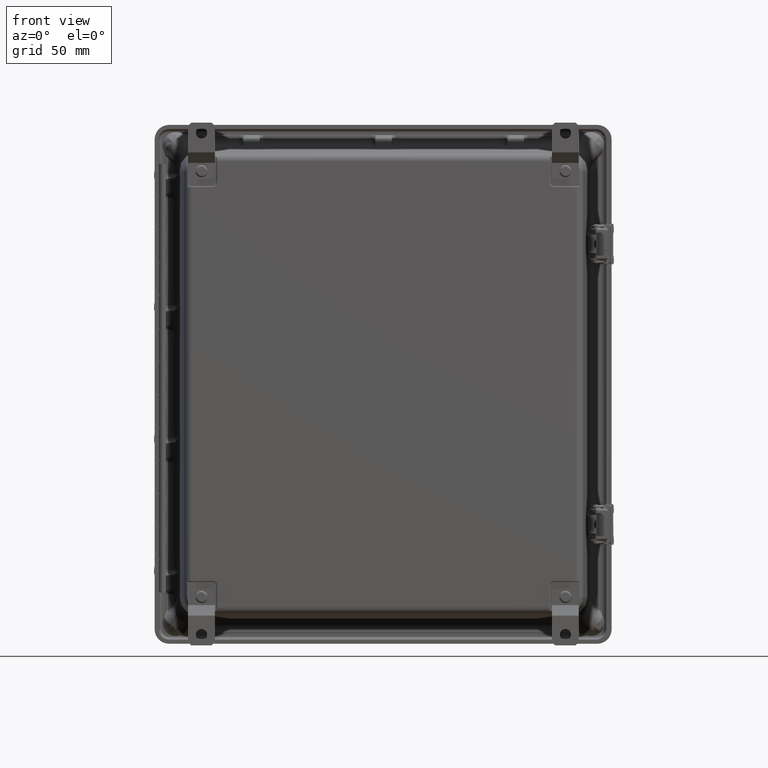
[diagram: clean part render]
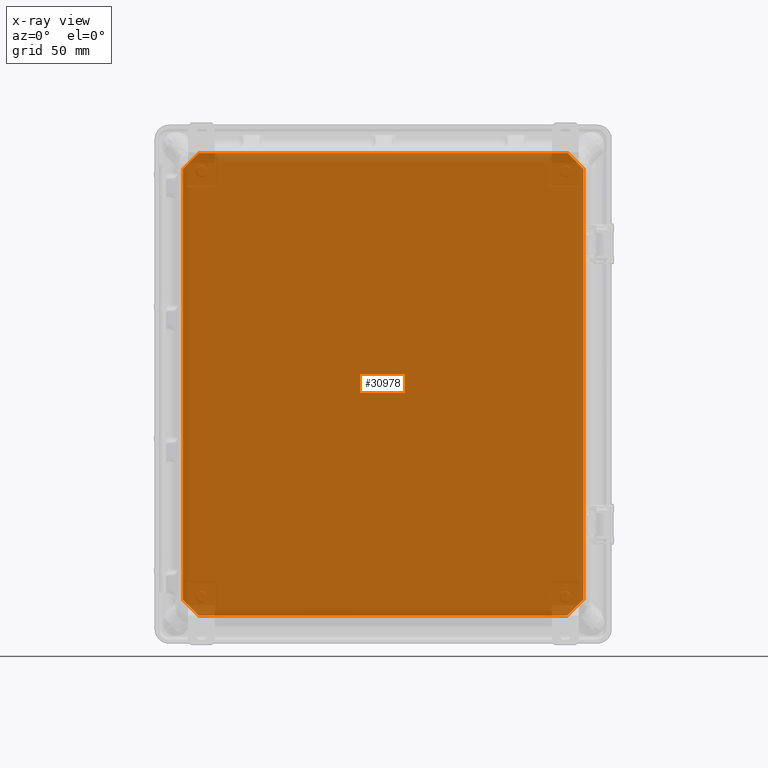
[diagram: x-ray — body ghosted, one internal face saturated and labeled with its STEP entity id]
A machine part, front view, then the same camera in x-ray: the body is ghosted and one INTERNAL B-rep face — a face not visible from any outside direction — is saturated and labeled: STEP entity #30978.
In plain terms, the highlighted planar face has unit normal (0, 1, 0).
Its self-contained STEP definition (entity closure, byte-faithful):
#923 = AXIS2_PLACEMENT_3D ( 'NONE', #2387, #35506, #7137 ) ;
#1721 = ORIENTED_EDGE ( 'NONE', *, *, #36882, .T. ) ;
#2387 = CARTESIAN_POINT ( 'NONE',  ( -7.425999999999999300, 0.8750000000000000000, 6.488999999999999900 ) ) ;
#3051 = VERTEX_POINT ( 'NONE', #35280 ) ;
#3489 = VECTOR ( 'NONE', #44019, 39.37007874015748900 ) ;
#3625 = DIRECTION ( 'NONE',  ( 0.0000000000000000000, 0.0000000000000000000, 1.000000000000000000 ) ) ;
#3833 = CARTESIAN_POINT ( 'NONE',  ( 7.008072769686832800, 0.8750000000000000000, 6.488999999999999900 ) ) ;
#4955 = VECTOR ( 'NONE', #51833, 39.37007874015748100 ) ;
#4991 = CARTESIAN_POINT ( 'NONE',  ( -6.525763114886451900, 0.8750000000000000000, -6.071072769686829000 ) ) ;
#5118 = ORIENTED_EDGE ( 'NONE', *, *, #11080, .T. ) ;
#5423 = CARTESIAN_POINT ( 'NONE',  ( -6.525763114886453700, 0.8750000000000000000, 6.071072769686827200 ) ) ;
#6134 = CARTESIAN_POINT ( 'NONE',  ( -0.6590820577133590400, 0.8750000000000000000, 13.25591794228664000 ) ) ;
#7080 = CARTESIAN_POINT ( 'NONE',  ( 5.829917942286639000, 0.8750000000000000000, -6.766917942286638300 ) ) ;
#7137 = DIRECTION ( 'NONE',  ( 0.0000000000000000000, -0.0000000000000000000, 1.000000000000000000 ) ) ;
#8002 = VERTEX_POINT ( 'NONE', #4991 ) ;
#11080 = EDGE_CURVE ( 'NONE', #52784, #52733, #46916, .T. ) ;
#12705 = EDGE_CURVE ( 'NONE', #43885, #46587, #54142, .T. ) ;
#14300 = ORIENTED_EDGE ( 'NONE', *, *, #20869, .T. ) ;
#16042 = LINE ( 'NONE', #18466, #4955 ) ;
#16089 = LINE ( 'NONE', #6134, #3489 ) ;
#16366 = VECTOR ( 'NONE', #59272, 39.37007874015748100 ) ;
#17200 = ORIENTED_EDGE ( 'NONE', *, *, #12705, .T. ) ;
#18466 = CARTESIAN_POINT ( 'NONE',  ( -7.425999999999994800, 0.8750000000000000000, -6.071072769686829000 ) ) ;
#19895 = CARTESIAN_POINT ( 'NONE',  ( 6.525763114886459000, 0.8750000000000000000, 6.071072769686822700 ) ) ;
#20017 = CARTESIAN_POINT ( 'NONE',  ( 6.525763114886453700, 0.8750000000000000000, -6.071072769686824500 ) ) ;
#20240 = VECTOR ( 'NONE', #57516, 39.37007874015748100 ) ;
#20864 = VERTEX_POINT ( 'NONE', #20017 ) ;
#20869 = EDGE_CURVE ( 'NONE', #3051, #52784, #16089, .T. ) ;
#22469 = EDGE_CURVE ( 'NONE', #52733, #43885, #48557, .T. ) ;
#23127 = CARTESIAN_POINT ( 'NONE',  ( -13.25591794228663800, 0.8750000000000000000, 0.6590820577133601500 ) ) ;
#24762 = EDGE_CURVE ( 'NONE', #52200, #3051, #33542, .T. ) ;
#25384 = CARTESIAN_POINT ( 'NONE',  ( -6.766917942286640100, 0.8750000000000000000, 5.829917942286640700 ) ) ;
#25771 = PLANE ( 'NONE',  #923 ) ;
#27890 = DIRECTION ( 'NONE',  ( 0.7071067811865474600, 0.0000000000000000000, -0.7071067811865474600 ) ) ;
#29507 = ORIENTED_EDGE ( 'NONE', *, *, #58019, .T. ) ;
#29625 = VECTOR ( 'NONE', #54465, 39.37007874015748900 ) ;
#30912 = CARTESIAN_POINT ( 'NONE',  ( -7.008072769686828400, 0.8750000000000000000, 6.488999999999999900 ) ) ;
#30978 = ADVANCED_FACE ( 'NONE', ( #52358 ), #25771, .F. ) ;
#33542 = LINE ( 'NONE', #3833, #55724 ) ;
#33938 = CARTESIAN_POINT ( 'NONE',  ( -7.425999999999999300, 0.8750000000000000000, 6.071072769686827200 ) ) ;
#34407 = CARTESIAN_POINT ( 'NONE',  ( -7.008072769686828400, 0.8750000000000000000, 5.588763114886451600 ) ) ;
#34692 = ORIENTED_EDGE ( 'NONE', *, *, #24762, .T. ) ;
#34759 = EDGE_LOOP ( 'NONE', ( #53323, #1721, #34692, #14300, #5118, #48964, #17200, #29507 ) ) ;
#35280 = CARTESIAN_POINT ( 'NONE',  ( 7.008072769686832800, 0.8750000000000000000, 5.588763114886448900 ) ) ;
#35506 = DIRECTION ( 'NONE',  ( 0.0000000000000000000, 1.000000000000000000, 0.0000000000000000000 ) ) ;
#36882 = EDGE_CURVE ( 'NONE', #20864, #52200, #54776, .T. ) ;
#39694 = DIRECTION ( 'NONE',  ( -0.7071067811865474600, 0.0000000000000000000, -0.7071067811865474600 ) ) ;
#43885 = VERTEX_POINT ( 'NONE', #34407 ) ;
#44019 = DIRECTION ( 'NONE',  ( -0.7071067811865474600, 0.0000000000000000000, 0.7071067811865474600 ) ) ;
#46198 = LINE ( 'NONE', #23127, #50643 ) ;
#46587 = VERTEX_POINT ( 'NONE', #51735 ) ;
#46916 = LINE ( 'NONE', #33938, #20240 ) ;
#48557 = LINE ( 'NONE', #25384, #59615 ) ;
#48964 = ORIENTED_EDGE ( 'NONE', *, *, #22469, .T. ) ;
#49878 = EDGE_CURVE ( 'NONE', #8002, #20864, #16042, .T. ) ;
#50643 = VECTOR ( 'NONE', #27890, 39.37007874015748900 ) ;
#51735 = CARTESIAN_POINT ( 'NONE',  ( -7.008072769686828400, 0.8750000000000000000, -5.588763114886453400 ) ) ;
#51833 = DIRECTION ( 'NONE',  ( 1.000000000000000000, 0.0000000000000000000, 3.336098908458876900E-016 ) ) ;
#52200 = VERTEX_POINT ( 'NONE', #52518 ) ;
#52358 = FACE_OUTER_BOUND ( 'NONE', #34759, .T. ) ;
#52518 = CARTESIAN_POINT ( 'NONE',  ( 7.008072769686832800, 0.8750000000000000000, -5.588763114886445400 ) ) ;
#52733 = VERTEX_POINT ( 'NONE', #5423 ) ;
#52784 = VERTEX_POINT ( 'NONE', #19895 ) ;
#53323 = ORIENTED_EDGE ( 'NONE', *, *, #49878, .T. ) ;
#54142 = LINE ( 'NONE', #30912, #16366 ) ;
#54465 = DIRECTION ( 'NONE',  ( 0.7071067811865474600, 0.0000000000000000000, 0.7071067811865474600 ) ) ;
#54776 = LINE ( 'NONE', #7080, #29625 ) ;
#55724 = VECTOR ( 'NONE', #3625, 39.37007874015748100 ) ;
#57516 = DIRECTION ( 'NONE',  ( -1.000000000000000000, 0.0000000000000000000, 3.336098908458876900E-016 ) ) ;
#58019 = EDGE_CURVE ( 'NONE', #46587, #8002, #46198, .T. ) ;
#59272 = DIRECTION ( 'NONE',  ( 0.0000000000000000000, 0.0000000000000000000, -1.000000000000000000 ) ) ;
#59615 = VECTOR ( 'NONE', #39694, 39.37007874015748900 ) ;